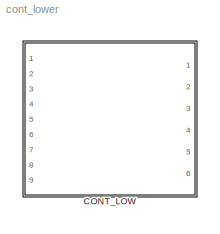
MODEL cont_lower
KIND model
CONFIG AbsTol = auto
CONFIG FixedStep = auto
CONFIG MaxStep = auto
CONFIG MinStep = auto
CONFIG RelTol = 1e-3
CONFIG Solver = ode45
CONFIG SolverMode = Auto
CONFIG StartTime = 0.0
CONFIG StopTime = 10.0
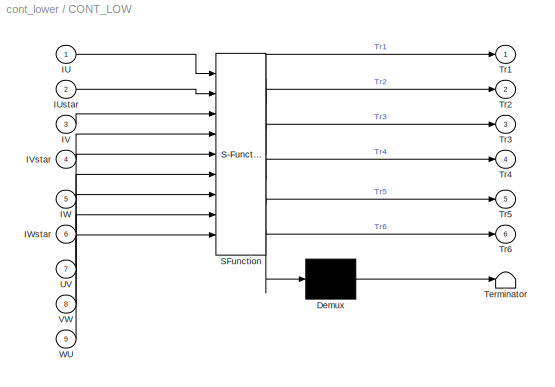
BLOCK [SubSystem] CONT_LOW
  MaskDescription = Stateflow diagram
  MaskDisplay = plot(sf('Private','sfblk','xIcon'),sf('Private','sfblk','yIcon'));text(0.5,0,sf('Private', 'sfblk', 'tIcon'),'HorizontalAl','Center','VerticalAl','Bottom');
  MaskIconFrame = off
  MaskIconOpaque = off
  MaskIconRotate = none
  MaskIconUnits = autoscale
  MaskSelfModifiable = on
  MaskType = Stateflow
  Ports = [9, 6]
  TreatAsAtomicUnit = on
BLOCK [Demux] CONT_LOW/ Demux 
  Outputs = 1
  Ports = [1, 1]
BLOCK [S-Function] CONT_LOW/ SFunction 
  FunctionName = sf_sfun
  PortCounts = [9 7]
  Ports = [9, 7]
  Tag = Stateflow S-Function cont_lower 1
BLOCK [Terminator] CONT_LOW/ Terminator 
BLOCK [Inport] CONT_LOW/IU
  PortDimensions = 1
BLOCK [Inport] CONT_LOW/IUstar
  Port = 2
  PortDimensions = 1
BLOCK [Inport] CONT_LOW/IV
  Port = 3
  PortDimensions = 1
BLOCK [Inport] CONT_LOW/IVstar
  Port = 4
  PortDimensions = 1
BLOCK [Inport] CONT_LOW/IW
  Port = 5
  PortDimensions = 1
BLOCK [Inport] CONT_LOW/IWstar
  Port = 6
  PortDimensions = 1
BLOCK [Outport] CONT_LOW/Tr1
BLOCK [Outport] CONT_LOW/Tr2
  Port = 2
BLOCK [Outport] CONT_LOW/Tr3
  Port = 3
BLOCK [Outport] CONT_LOW/Tr4
  Port = 4
BLOCK [Outport] CONT_LOW/Tr5
  Port = 5
BLOCK [Outport] CONT_LOW/Tr6
  Port = 6
BLOCK [Inport] CONT_LOW/UV
  Port = 7
  PortDimensions = 1
BLOCK [Inport] CONT_LOW/VW
  Port = 8
  PortDimensions = 1
BLOCK [Inport] CONT_LOW/WU
  Port = 9
  PortDimensions = 1
LINE CONT_LOW/ Demux :1 -> CONT_LOW/ Terminator :1
LINE CONT_LOW/ SFunction :1 -> CONT_LOW/ Demux :1
LINE CONT_LOW/ SFunction :2 -> CONT_LOW/Tr1:1
LINE CONT_LOW/ SFunction :3 -> CONT_LOW/Tr2:1
LINE CONT_LOW/ SFunction :4 -> CONT_LOW/Tr3:1
LINE CONT_LOW/ SFunction :5 -> CONT_LOW/Tr4:1
LINE CONT_LOW/ SFunction :6 -> CONT_LOW/Tr5:1
LINE CONT_LOW/ SFunction :7 -> CONT_LOW/Tr6:1
LINE CONT_LOW/IU:1 -> CONT_LOW/ SFunction :1
LINE CONT_LOW/IUstar:1 -> CONT_LOW/ SFunction :2
LINE CONT_LOW/IV:1 -> CONT_LOW/ SFunction :3
LINE CONT_LOW/IVstar:1 -> CONT_LOW/ SFunction :4
LINE CONT_LOW/IW:1 -> CONT_LOW/ SFunction :5
LINE CONT_LOW/IWstar:1 -> CONT_LOW/ SFunction :6
LINE CONT_LOW/UV:1 -> CONT_LOW/ SFunction :7
LINE CONT_LOW/VW:1 -> CONT_LOW/ SFunction :8
LINE CONT_LOW/WU:1 -> CONT_LOW/ SFunction :9
CHART CONT_LOW states=18 transitions=25
  STATE_LABEL 'A/'
  STATE_LABEL 'A1/\\nduring: Tr1=0;Tr3=0;Tr4=0;\\nTr2=0;Tr5=0;Tr6=0;'
  STATE_LABEL 'A2/\\nduring: Tr1=0; Tr3=0; Tr4=0; Tr2=0; Tr5=0;\\nTr6=1;'
  STATE_LABEL 'B/'
  STATE_LABEL 'B1/\\nduring: Tr3=0;Tr5=0;Tr4=0;Tr2=0;\\nTr1=0; Tr6=0;'
  STATE_LABEL 'B2/\\nduring:Tr3=0;Tr5=0;Tr4=0;Tr2=0;\\nTr1=0; Tr6=1;'
  STATE_LABEL 'C/'
  STATE_LABEL 'C1/\\nduring: Tr3=0;Tr5=0;Tr4=0;Tr2=0;\\nTr1=0; Tr6=0;'
  STATE_LABEL 'C2/\\nduring: Tr3=0;Tr5=0; Tr4=0; Tr6=0;\\nTr1=0; Tr2=1;'
  STATE_LABEL 'D/'
  STATE_LABEL 'D1/\\nduring: Tr3=0;Tr5=0;Tr4=0;Tr2=0;\\nTr1=0; Tr6=0;'
  STATE_LABEL 'D2/\\nduring: Tr1=0; Tr5=0;Tr4=0; Tr6=0;\\nTr3=0; Tr2=1;'
  STATE_LABEL 'E/'
  STATE_LABEL 'E1/\\nduring: Tr3=0;Tr5=0;Tr4=0;Tr2=0;\\nTr1=0; Tr6=0;'
  STATE_LABEL 'E2/\\nduring: Tr1=0; Tr5=0; Tr6=0; Tr2=0;\\nTr3=0; Tr4=1;'
  STATE_LABEL 'F/'
  STATE_LABEL 'F1/\\nduring: Tr3=0;Tr5=0;Tr4=0;Tr2=0;\\nTr1=0; Tr6=0;'
  STATE_LABEL 'F2/\\nduring: Tr1=0; Tr3=0; Tr6=0; Tr2=0;\\nTr5=0; Tr4=1;'
